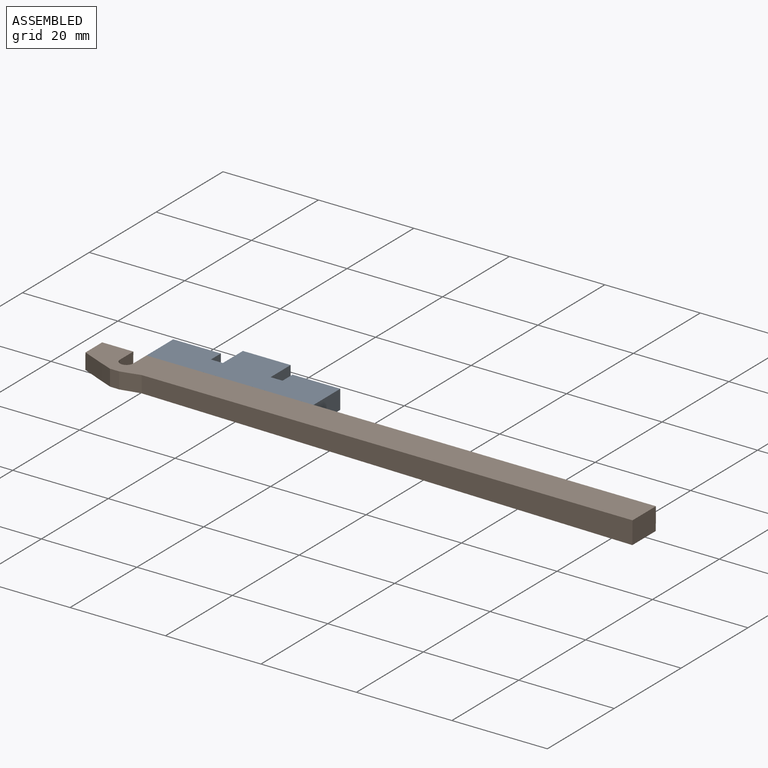
[diagram: assembled view]
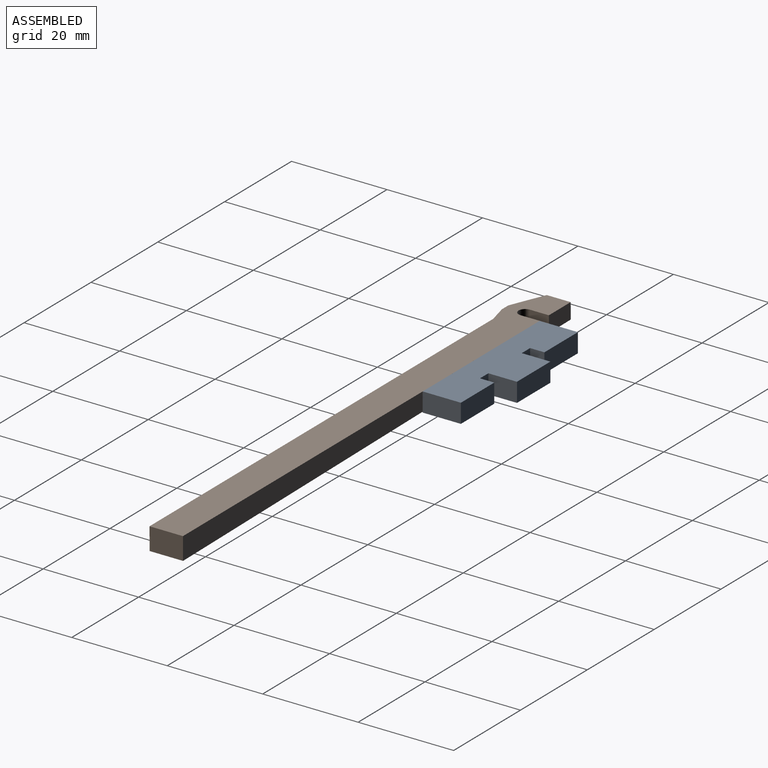
[diagram: assembled view, second angle]
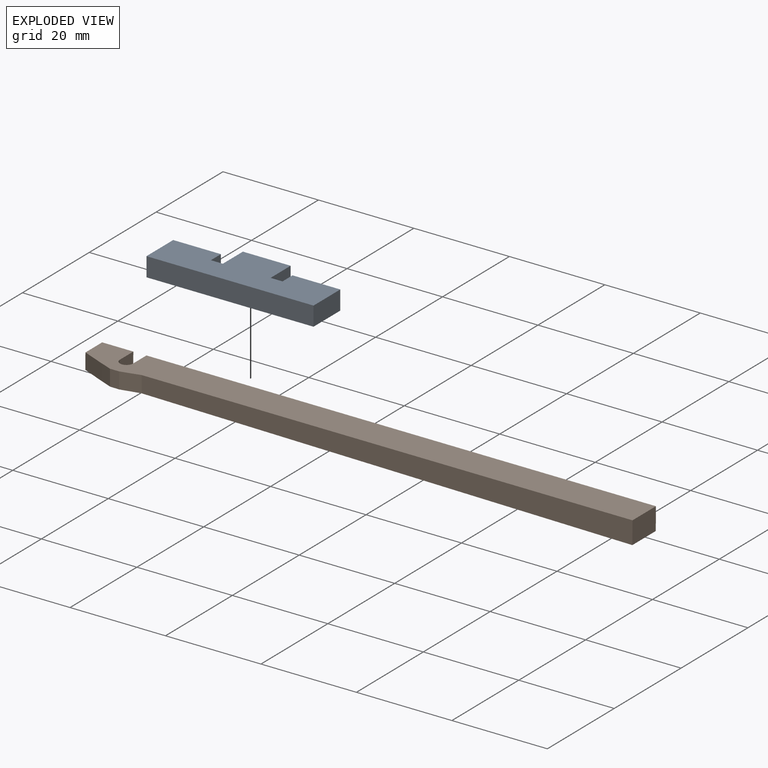
[diagram: exploded view]
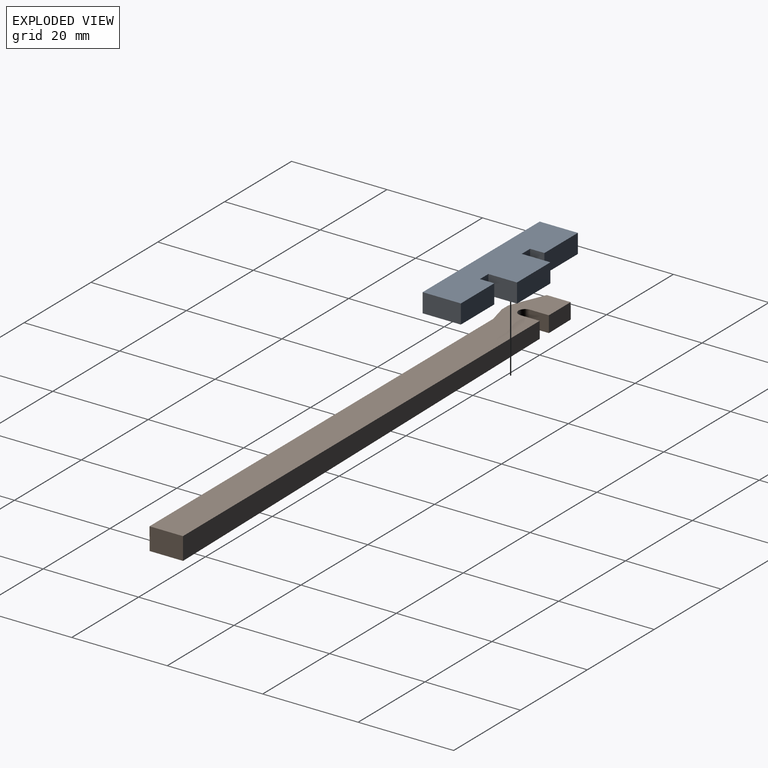
[diagram: exploded view, second angle]
ASSEMBLY  parts=2 mates=2
PART A: 14 faces, bbox 35x11x4 mm
  f0: plane 4x2.5mm, normal (0,1,0), area 10mm2, adj f1,f11,f12,f13
  f1: plane 6x4mm, normal (1,0,0), area 24mm2, adj f0,f2,f12,f13
  f2: plane 10x4mm, normal (0,1,0), area 40mm2, adj f1,f3,f12,f13
  f3: plane 6x4mm, normal (-1,0,0), area 24mm2, adj f2,f4,f12,f13
  f4: plane 4x2.5mm, normal (0,1,0), area 10mm2, adj f3,f5,f12,f13
  f5: plane 4x3mm, normal (1,0,0), area 12mm2, adj f4,f6,f12,f13
  f6: plane 10x4mm, normal (0,1,0), area 40mm2, adj f5,f7,f12,f13
  f7: plane 8x4mm, normal (-1,0,0), area 32mm2, adj f6,f8,f12,f13
  f8: plane 35x4mm, normal (0,-1,0), area 140mm2, adj f7,f9,f12,f13
  f9: plane 8x4mm, normal (1,0,0), area 32mm2, adj f8,f10,f12,f13
  f10: plane 10x4mm, normal (0,1,0), area 40mm2, adj f9,f11,f12,f13
  f11: plane 4x3mm, normal (-1,0,0), area 12mm2, adj f0,f10,f12,f13
  f12: plane 35x11mm, normal (0,0,1), area 295mm2, adj f0,f1,f2,f3,f4,f5,f6,f7
  f13: plane 35x11mm, normal (0,0,-1), area 295mm2, adj f0,f1,f2,f3,f4,f5,f6,f7
PART B: 14 faces, bbox 116x8x4.7 mm
  f0: plane 5x3.3mm, normal (-1,0,0), area 16.5mm2, adj f1,f4,f9,f10
  f1: plane 6.53x3.38mm, normal (0,-1,0), area 21.8mm2, adj f0,f5,f9,f10
  f2: plane 106.72x4.7mm, normal (0,-1,0), area 432.9mm2, adj f7,f8,f9,f10
  f3: plane 102.82x4.7mm, normal (0,1,0), area 419.5mm2, adj f8,f9,f10,f12
  f4: plane 4.76x3.36mm, normal (-0.39,0.92,0), area 17.2mm2, adj f0,f9,f10,f13
  f5: plane 4x3.38mm, normal (1,0,0), area 13.5mm2, adj f1,f6,f9,f10
  f6: cylinder r=1.38mm len=3.41mm, axis (0,0,-1), area 14.7mm2, adj f5,f7,f9,f10
  f7: plane 4x3.41mm, normal (-1,0,0), area 13.6mm2, adj f2,f6,f9,f10
  f8: plane 7x4.7mm, normal (1,0,0), area 32.9mm2, adj f2,f3,f9,f10
  f9: plane 116x8mm, normal (-0.01,0,-1), area 798.5mm2, adj f0,f1,f2,f3,f4,f5,f6,f7
  f10: plane 116x8mm, normal (-0.01,0,1), area 798.5mm2, adj f0,f1,f2,f3,f4,f5,f6,f7
  f11: plane 3.41x1.92mm, normal (0,1,0), area 6.5mm2, adj f9,f10,f12,f13
  f12: plane 4x3.46mm, normal (0.24,0.97,0), area 14.2mm2, adj f3,f9,f10,f11
  f13: plane 3.39x2.5mm, normal (-0.37,0.93,0), area 9.1mm2, adj f4,f9,f10,f11
PLACE A t=(17.5,4,0)mm
PLACE B rot(axis=(1,0,0),180deg) t=(23.6,0,4.5)mm
MATE fastened A.f12 <-> B.f9  axis (0,0,1) through (0,0,4)mm
MATE parallel B.f2 <-> A.f8  axis (0,1,0) through (56.17,0,1.95)mm
